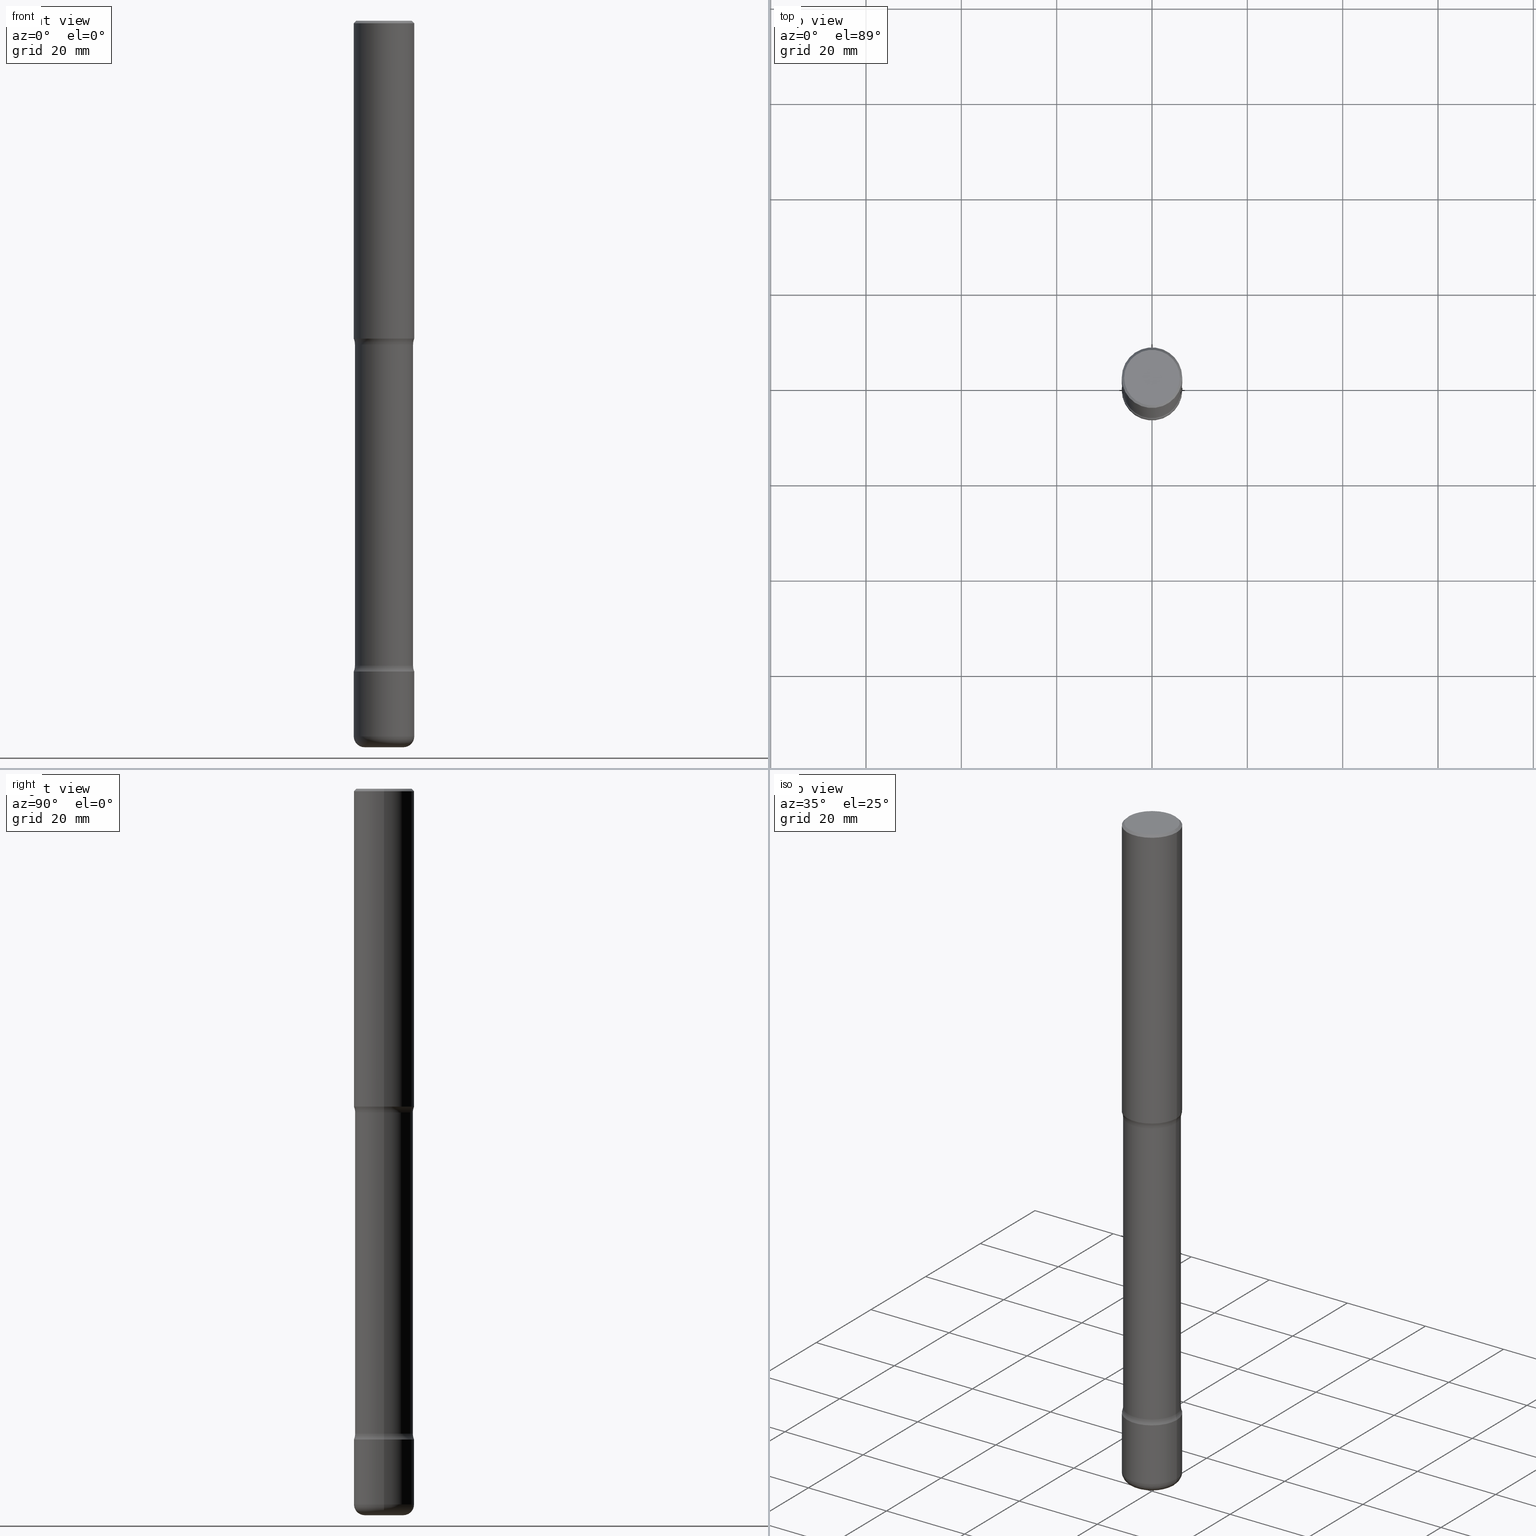
[diagram: canonical four-view strip — front | top / right | iso, engineering-drawing reading convention]
A machine part, canonical four-view strip (front | top / right | iso — engineering-drawing reading convention). The complete STEP part file that produces these views, byte-faithful:
ISO-10303-21;
HEADER;
FILE_DESCRIPTION (( 'STEP AP203' ),
    '1' );
FILE_NAME ('32841.STEP',
    '2023-03-11T07:06:01',
    ( '' ),
    ( '' ),
    'SwSTEP 2.0',
    'SolidWorks 2022',
    '' );
FILE_SCHEMA (( 'CONFIG_CONTROL_DESIGN' ));
ENDSEC;

DATA;
#1 = EDGE_LOOP ( 'NONE', ( #552, #108, #412, #759 ) ) ;
#2 = SECURITY_CLASSIFICATION_LEVEL ( 'unclassified' ) ;
#3 = ADVANCED_FACE ( 'NONE', ( #640 ), #381, .T. ) ;
#4 = DIRECTION ( 'NONE',  ( 2.445468806185136597E-29, -3.491481338843145583E-15, -1.000000000000000000 ) ) ;
#5 = EDGE_LOOP ( 'NONE', ( #8, #47, #513, #113 ) ) ;
#6 = EDGE_LOOP ( 'NONE', ( #35, #314, #207, #221 ) ) ;
#7 = FACE_OUTER_BOUND ( 'NONE', #240, .T. ) ;
#8 = ORIENTED_EDGE ( 'NONE', *, *, #669, .F. ) ;
#9 = CARTESIAN_POINT ( 'NONE',  ( 0.2499999999999999167, -2.051245286570347630E-14, -5.375000000000000888 ) ) ;
#10 = ORIENTED_EDGE ( 'NONE', *, *, #171, .F. ) ;
#11 = ORIENTED_EDGE ( 'NONE', *, *, #428, .T. ) ;
#12 = AXIS2_PLACEMENT_3D ( 'NONE', #323, #549, #485 ) ;
#13 = AXIS2_PLACEMENT_3D ( 'NONE', #514, #208, #700 ) ;
#14 = CYLINDRICAL_SURFACE ( 'NONE', #95, 0.2399999999999999634 ) ;
#15 = ORIENTED_EDGE ( 'NONE', *, *, #428, .F. ) ;
#16 = FACE_OUTER_BOUND ( 'NONE', #170, .T. ) ;
#17 = DIRECTION ( 'NONE',  ( -2.445468806185136597E-29, 3.491481338843145583E-15, 1.000000000000000000 ) ) ;
#18 = CARTESIAN_POINT ( 'NONE',  ( 0.2499999999999997224, -1.784954126219744217E-15, -0.02000000000000005593 ) ) ;
#19 = ORIENTED_EDGE ( 'NONE', *, *, #579, .F. ) ;
#20 = PERSON ( 'UNSPECIFIED', 'UNSPECIFIED', 'UNSPECIFIED', ('UNSPECIFIED'), ('UNSPECIFIED'), ('UNSPECIFIED') ) ;
#21 = CARTESIAN_POINT ( 'NONE',  ( -0.2499999999999999722, -2.841127231219808307E-15, -2.625000000000000444 ) ) ;
#22 = CYLINDRICAL_SURFACE ( 'NONE', #204, 0.2399999999999999634 ) ;
#23 = CARTESIAN_POINT ( 'NONE',  ( 6.419355616235984688E-29, -9.165138514463258190E-15, -2.625000000000000444 ) ) ;
#24 = AXIS2_PLACEMENT_3D ( 'NONE', #59, #445, #686 ) ;
#25 = FACE_OUTER_BOUND ( 'NONE', #288, .T. ) ;
#26 = LOCAL_TIME ( 2, 6, 1.000000000000000000, #628 ) ;
#27 = FACE_OUTER_BOUND ( 'NONE', #413, .T. ) ;
#28 = ADVANCED_FACE ( 'NONE', ( #187, #561 ), #262, .F. ) ;
#29 = DIRECTION ( 'NONE',  ( -2.445468806185136597E-29, 3.491481338843145583E-15, 1.000000000000000000 ) ) ;
#30 = DIRECTION ( 'NONE',  ( -2.445468806185136597E-29, 3.491481338843145583E-15, 1.000000000000000000 ) ) ;
#31 = APPLICATION_CONTEXT ( 'configuration controlled 3d designs of mechanical parts and assemblies' ) ;
#32 = CARTESIAN_POINT ( 'NONE',  ( 0.2399999999999996858, -1.101209651164026728E-14, -2.673989794855665014 ) ) ;
#33 = DIRECTION ( 'NONE',  ( 1.000000000000000000, -6.982962677686266711E-15, 4.876225828469315047E-29 ) ) ;
#34 = CARTESIAN_POINT ( 'NONE',  ( 1.314439483324511145E-28, -1.876671219628190963E-14, -5.375000000000000888 ) ) ;
#35 = ORIENTED_EDGE ( 'NONE', *, *, #713, .F. ) ;
#36 = AXIS2_PLACEMENT_3D ( 'NONE', #780, #603, #310 ) ;
#37 = AXIS2_PLACEMENT_3D ( 'NONE', #145, #335, #760 ) ;
#38 = EDGE_CURVE ( 'NONE', #721, #125, #675, .T. ) ;
#39 = CARTESIAN_POINT ( 'NONE',  ( 1.466128415402601217E-28, -2.093242812903137856E-14, -5.995285696118614283 ) ) ;
#40 = DIRECTION ( 'NONE',  ( 1.000000000000000000, -6.982962677686269077E-15, 4.883557194083113462E-29 ) ) ;
#41 = ORIENTED_EDGE ( 'NONE', *, *, #385, .F. ) ;
#42 = CYLINDRICAL_SURFACE ( 'NONE', #382, 0.2399999999999999634 ) ;
#43 = APPLICATION_PROTOCOL_DEFINITION ( 'international standard', 'config_control_design', 1994, #31 ) ;
#44 = VERTEX_POINT ( 'NONE', #9 ) ;
#45 = DIRECTION ( 'NONE',  ( 1.000000000000000000, -6.982962677686266711E-15, 0.000000000000000000 ) ) ;
#46 = ORIENTED_EDGE ( 'NONE', *, *, #351, .F. ) ;
#47 = ORIENTED_EDGE ( 'NONE', *, *, #185, .F. ) ;
#48 = APPROVAL ( #114, 'UNSPECIFIED' ) ;
#49 = CLOSED_SHELL ( 'NONE', ( #338, #805, #368, #28, #3, #380, #544, #784 ) ) ;
#50 = PLANE ( 'NONE',  #555 ) ;
#51 = ORIENTED_EDGE ( 'NONE', *, *, #706, .T. ) ;
#52 = AXIS2_PLACEMENT_3D ( 'NONE', #107, #365, #45 ) ;
#53 = ADVANCED_FACE ( 'NONE', ( #451 ), #378, .T. ) ;
#54 = AXIS2_PLACEMENT_3D ( 'NONE', #133, #630, #71 ) ;
#55 = ORIENTED_EDGE ( 'NONE', *, *, #494, .F. ) ;
#56 = ORIENTED_EDGE ( 'NONE', *, *, #171, .T. ) ;
#57 = DIRECTION ( 'NONE',  ( 1.000000000000000000, -6.982962677686260400E-15, 0.000000000000000000 ) ) ;
#58 = PERSON_AND_ORGANIZATION_ROLE ( 'design_supplier' ) ;
#59 = CARTESIAN_POINT ( 'NONE',  ( 1.314439483324511145E-28, -1.876671219628190963E-14, -5.375000000000000888 ) ) ;
#60 = VERTEX_POINT ( 'NONE', #694 ) ;
#61 = EDGE_LOOP ( 'NONE', ( #194, #578 ) ) ;
#62 = EDGE_CURVE ( 'NONE', #158, #448, #626, .T. ) ;
#63 = EDGE_LOOP ( 'NONE', ( #548, #342, #152, #575 ) ) ;
#64 = ADVANCED_FACE ( 'NONE', ( #621 ), #42, .T. ) ;
#65 = CARTESIAN_POINT ( 'NONE',  ( -0.2399999999999996858, -7.660274426350862101E-15, -2.673989794855665014 ) ) ;
#66 = VERTEX_POINT ( 'NONE', #321 ) ;
#67 = VECTOR ( 'NONE', #574, 39.37007874015748143 ) ;
#68 = DIRECTION ( 'NONE',  ( 1.000000000000000000, -6.982962677686269077E-15, 0.000000000000000000 ) ) ;
#69 = ORIENTED_EDGE ( 'NONE', *, *, #142, .F. ) ;
#70 = APPROVAL_PERSON_ORGANIZATION ( #749, #48, #132 ) ;
#71 = DIRECTION ( 'NONE',  ( 1.000000000000000000, -6.982962677686269077E-15, 4.883557194083113462E-29 ) ) ;
#72 = ORIENTED_EDGE ( 'NONE', *, *, #729, .F. ) ;
#73 = ORIENTED_EDGE ( 'NONE', *, *, #806, .F. ) ;
#74 = DIRECTION ( 'NONE',  ( -1.000000000000000000, 6.982962677686265922E-15, -4.876176775795935793E-29 ) ) ;
#75 = ORIENTED_EDGE ( 'NONE', *, *, #110, .T. ) ;
#76 = CARTESIAN_POINT ( 'NONE',  ( 1.467281283711081510E-28, -2.094888803305886640E-14, -5.999999999999998224 ) ) ;
#77 = ORIENTED_EDGE ( 'NONE', *, *, #190, .T. ) ;
#78 = CARTESIAN_POINT ( 'NONE',  ( -0.2500000000000000000, 1.776356839400250465E-15, -1.229733772563726445E-29 ) ) ;
#79 = EDGE_CURVE ( 'NONE', #387, #125, #782, .T. ) ;
#80 = APPROVAL ( #531, 'UNSPECIFIED' ) ;
#81 = DIRECTION ( 'NONE',  ( -2.445468806185136597E-29, 3.491481338843145583E-15, 1.000000000000000000 ) ) ;
#82 = CARTESIAN_POINT ( 'NONE',  ( 1.445272064455415567E-28, -2.063465471256298944E-14, -5.910000000000000142 ) ) ;
#83 = AXIS2_PLACEMENT_3D ( 'NONE', #547, #360, #234 ) ;
#84 =( GEOMETRIC_REPRESENTATION_CONTEXT ( 3 ) GLOBAL_UNCERTAINTY_ASSIGNED_CONTEXT ( ( #236 ) ) GLOBAL_UNIT_ASSIGNED_CONTEXT ( ( #286, #791, #605 ) ) REPRESENTATION_CONTEXT ( 'NONE', 'WORKASPACE' ) );
#85 = FACE_OUTER_BOUND ( 'NONE', #346, .T. ) ;
#86 = CARTESIAN_POINT ( 'NONE',  ( -0.2399999999999996858, -7.509832289117167989E-15, -2.673989794855665014 ) ) ;
#87 = CARTESIAN_POINT ( 'NONE',  ( 1.302459181810417859E-28, -1.859566524174961022E-14, -5.326010205144338094 ) ) ;
#88 = ORIENTED_EDGE ( 'NONE', *, *, #729, .T. ) ;
#89 = DIRECTION ( 'NONE',  ( 1.000000000000000000, -6.982962677686260400E-15, 0.000000000000000000 ) ) ;
#90 = DIRECTION ( 'NONE',  ( 1.000000000000000000, -6.982962677686269866E-15, 4.883557194083114583E-29 ) ) ;
#91 = DIRECTION ( 'NONE',  ( 1.000000000000000000, -6.982962677686265133E-15, 0.000000000000000000 ) ) ;
#92 = AXIS2_PLACEMENT_3D ( 'NONE', #708, #343, #96 ) ;
#93 = CIRCLE ( 'NONE', #768, 0.1250000000000000278 ) ;
#94 = DIRECTION ( 'NONE',  ( 1.000000000000000000, -6.982962677686269077E-15, 0.000000000000000000 ) ) ;
#95 = AXIS2_PLACEMENT_3D ( 'NONE', #282, #272, #94 ) ;
#96 = DIRECTION ( 'NONE',  ( 1.000000000000000000, -6.982962677686265922E-15, 4.876176775795935793E-29 ) ) ;
#97 = CARTESIAN_POINT ( 'NONE',  ( 0.000000000000000000, 0.000000000000000000, 0.000000000000000000 ) ) ;
#98 = DIRECTION ( 'NONE',  ( -1.000000000000000000, 6.982962677686262766E-15, 0.000000000000000000 ) ) ;
#99 = APPROVAL_DATE_TIME ( #720, #80 ) ;
#100 = DIRECTION ( 'NONE',  ( -6.982962677686266711E-15, -1.000000000000000000, 3.491481338843145583E-15 ) ) ;
#101 = EDGE_CURVE ( 'NONE', #776, #641, #232, .T. ) ;
#102 = CC_DESIGN_PERSON_AND_ORGANIZATION_ASSIGNMENT ( #295, #535, ( #654 ) ) ;
#103 = CIRCLE ( 'NONE', #397, 0.1250000000000000278 ) ;
#104 = CALENDAR_DATE ( 2023, 11, 3 ) ;
#105 = TOROIDAL_SURFACE ( 'NONE', #584, 0.3649999999999997136, 0.1250000000000000278 ) ;
#106 = DIRECTION ( 'NONE',  ( 1.000000000000000000, -6.982962677686269866E-15, 4.883557194083114583E-29 ) ) ;
#107 = CARTESIAN_POINT ( 'NONE',  ( 4.890937612370287172E-31, -6.982962677686310098E-17, -0.02000000000000005593 ) ) ;
#108 = ORIENTED_EDGE ( 'NONE', *, *, #553, .T. ) ;
#109 = DATE_AND_TIME ( #260, #26 ) ;
#110 = EDGE_CURVE ( 'NONE', #448, #228, #444, .T. ) ;
#111 = CARTESIAN_POINT ( 'NONE',  ( 0.2500000000000000000, -1.091087918388482487E-14, -2.625000000000000444 ) ) ;
#112 = ORIENTED_EDGE ( 'NONE', *, *, #724, .F. ) ;
#113 = ORIENTED_EDGE ( 'NONE', *, *, #498, .T. ) ;
#114 = APPROVAL_STATUS ( 'not_yet_approved' ) ;
#115 = CARTESIAN_POINT ( 'NONE',  ( -0.2499999999999997224, 1.675911042644701605E-15, -0.02000000000000005593 ) ) ;
#116 = CIRCLE ( 'NONE', #241, 0.2500000000000000000 ) ;
#117 = AXIS2_PLACEMENT_3D ( 'NONE', #590, #417, #663 ) ;
#118 = CIRCLE ( 'NONE', #599, 0.2500000000000000000 ) ;
#119 = COORDINATED_UNIVERSAL_TIME_OFFSET ( 5, 0, .BEHIND. ) ;
#120 = DIRECTION ( 'NONE',  ( 2.438088387897960049E-29, -3.491481338843145188E-15, -1.000000000000000000 ) ) ;
#121 = ADVANCED_FACE ( 'NONE', ( #519 ), #774, .F. ) ;
#122 = DIRECTION ( 'NONE',  ( -2.438088387897960049E-29, 3.491481338843145188E-15, 1.000000000000000000 ) ) ;
#123 = EDGE_CURVE ( 'NONE', #606, #673, #116, .T. ) ;
#124 = EDGE_CURVE ( 'NONE', #387, #721, #127, .T. ) ;
#125 = VERTEX_POINT ( 'NONE', #585 ) ;
#126 = DIRECTION ( 'NONE',  ( 1.000000000000000000, -6.982962677686266711E-15, 0.000000000000000000 ) ) ;
#127 = LINE ( 'NONE', #624, #279 ) ;
#128 = ADVANCED_FACE ( 'NONE', ( #530 ), #596, .T. ) ;
#129 = DIRECTION ( 'NONE',  ( -2.445468806185136597E-29, 3.491481338843145583E-15, 1.000000000000000000 ) ) ;
#130 = DIRECTION ( 'NONE',  ( 1.000000000000000000, -6.982962677686273021E-15, 4.883557194083114583E-29 ) ) ;
#131 = ORIENTED_EDGE ( 'NONE', *, *, #716, .F. ) ;
#132 = APPROVAL_ROLE ( '' ) ;
#133 = CARTESIAN_POINT ( 'NONE',  ( 6.539158631376920910E-29, -9.336185468995565480E-15, -2.673989794855665014 ) ) ;
#134 = AXIS2_PLACEMENT_3D ( 'NONE', #179, #175, #423 ) ;
#135 = EDGE_LOOP ( 'NONE', ( #505, #322, #19 ) ) ;
#136 = CIRCLE ( 'NONE', #150, 0.09000000000000020484 ) ;
#137 = CYLINDRICAL_SURFACE ( 'NONE', #216, 0.2399999999999999634 ) ;
#138 = EDGE_LOOP ( 'NONE', ( #795, #297, #75, #10 ) ) ;
#139 = CARTESIAN_POINT ( 'NONE',  ( 1.467281283711081958E-28, -2.094888803305887271E-14, -6.000000000000000888 ) ) ;
#140 = ORIENTED_EDGE ( 'NONE', *, *, #38, .T. ) ;
#141 = DIRECTION ( 'NONE',  ( -1.000000000000000000, 6.982962677686269077E-15, 0.000000000000000000 ) ) ;
#142 = EDGE_CURVE ( 'NONE', #228, #247, #285, .T. ) ;
#143 = LINE ( 'NONE', #392, #347 ) ;
#144 = ORIENTED_EDGE ( 'NONE', *, *, #385, .T. ) ;
#145 = CARTESIAN_POINT ( 'NONE',  ( 6.419355616235984688E-29, -9.165138514463258190E-15, -2.625000000000000444 ) ) ;
#146 = CARTESIAN_POINT ( 'NONE',  ( 0.2500000000000001110, -2.238039538198455612E-14, -5.910000000000000142 ) ) ;
#147 = AXIS2_PLACEMENT_3D ( 'NONE', #523, #223, #160 ) ;
#148 = CIRCLE ( 'NONE', #524, 0.2299999999999997047 ) ;
#149 = CIRCLE ( 'NONE', #677, 0.1350000000000000366 ) ;
#150 = AXIS2_PLACEMENT_3D ( 'NONE', #650, #520, #390 ) ;
#151 = CARTESIAN_POINT ( 'NONE',  ( -0.1600000000000000311, -1.933515876450272677E-14, -6.000000000000000888 ) ) ;
#152 = ORIENTED_EDGE ( 'NONE', *, *, #263, .T. ) ;
#153 = ADVANCED_FACE ( 'NONE', ( #27 ), #162, .F. ) ;
#154 = LINE ( 'NONE', #18, #614 ) ;
#155 = CARTESIAN_POINT ( 'NONE',  ( -1.043851414335219820E-46, 1.490343170380447200E-32, 4.268512490100411279E-18 ) ) ;
#156 = EDGE_CURVE ( 'NONE', #324, #60, #480, .T. ) ;
#157 = CC_DESIGN_PERSON_AND_ORGANIZATION_ASSIGNMENT ( #734, #58, ( #372 ) ) ;
#158 = VERTEX_POINT ( 'NONE', #151 ) ;
#159 = CARTESIAN_POINT ( 'NONE',  ( -0.3650000000000002687, -1.600218425622524303E-14, -5.326010205144338094 ) ) ;
#160 = DIRECTION ( 'NONE',  ( 1.000000000000000000, -6.982962677686262766E-15, 0.000000000000000000 ) ) ;
#161 = AXIS2_PLACEMENT_3D ( 'NONE', #331, #506, #571 ) ;
#162 = TOROIDAL_SURFACE ( 'NONE', #545, 0.3650000000000002687, 0.1250000000000000000 ) ;
#163 = TOROIDAL_SURFACE ( 'NONE', #613, 0.3649999999999997136, 0.1250000000000000278 ) ;
#164 = LOCAL_TIME ( 2, 6, 1.000000000000000000, #304 ) ;
#165 = DIRECTION ( 'NONE',  ( 2.445468806185136597E-29, -3.491481338843145583E-15, -1.000000000000000000 ) ) ;
#166 = EDGE_LOOP ( 'NONE', ( #180, #140 ) ) ;
#167 = ORIENTED_EDGE ( 'NONE', *, *, #553, .F. ) ;
#168 = DIRECTION ( 'NONE',  ( -2.445468806185136597E-29, 3.491481338843145583E-15, 1.000000000000000000 ) ) ;
#169 = PLANE ( 'NONE',  #117 ) ;
#170 = EDGE_LOOP ( 'NONE', ( #88, #51, #112, #328 ) ) ;
#171 = EDGE_CURVE ( 'NONE', #66, #228, #308, .T. ) ;
#172 = CLOSED_SHELL ( 'NONE', ( #64, #620, #429, #607, #53, #738, #763, #736 ) ) ;
#173 = CARTESIAN_POINT ( 'NONE',  ( -0.2499999999999999167, -1.702097152686034295E-14, -5.375000000000000888 ) ) ;
#174 = AXIS2_PLACEMENT_3D ( 'NONE', #478, #100, #291 ) ;
#175 = DIRECTION ( 'NONE',  ( -2.445468806185136597E-29, 3.491481338843145583E-15, 1.000000000000000000 ) ) ;
#176 = LOCAL_TIME ( 2, 6, 1.000000000000000000, #119 ) ;
#177 = VERTEX_POINT ( 'NONE', #21 ) ;
#178 = FACE_OUTER_BOUND ( 'NONE', #595, .T. ) ;
#179 = CARTESIAN_POINT ( 'NONE',  ( 0.000000000000000000, 0.000000000000000000, 0.000000000000000000 ) ) ;
#180 = ORIENTED_EDGE ( 'NONE', *, *, #579, .T. ) ;
#181 = CARTESIAN_POINT ( 'NONE',  ( 6.539158631376920910E-29, -9.336185468995565480E-15, -2.673989794855665014 ) ) ;
#182 = CLOSED_SHELL ( 'NONE', ( #235, #128, #526, #463, #121, #474 ) ) ;
#183 = DIRECTION ( 'NONE',  ( -1.000000000000000000, 6.982962677686266711E-15, -4.883557194083112901E-29 ) ) ;
#184 = AXIS2_PLACEMENT_3D ( 'NONE', #341, #527, #456 ) ;
#185 = EDGE_CURVE ( 'NONE', #536, #748, #754, .T. ) ;
#186 = CIRCLE ( 'NONE', #398, 0.2400000000000002687 ) ;
#187 = FACE_OUTER_BOUND ( 'NONE', #214, .T. ) ;
#188 = CIRCLE ( 'NONE', #281, 0.1249999999999999584 ) ;
#189 = APPROVAL_STATUS ( 'not_yet_approved' ) ;
#190 = EDGE_CURVE ( 'NONE', #797, #200, #767, .T. ) ;
#191 = DIRECTION ( 'NONE',  ( 2.438088387897960049E-29, -3.491481338843145188E-15, -1.000000000000000000 ) ) ;
#192 = PERSON_AND_ORGANIZATION ( #20, #470 ) ;
#193 = DIRECTION ( 'NONE',  ( -1.000000000000000000, 6.982962677686269077E-15, 0.000000000000000000 ) ) ;
#194 = ORIENTED_EDGE ( 'NONE', *, *, #651, .T. ) ;
#195 = MANIFOLD_SOLID_BREP ( 'Body-Move/Copy2[2]', #182 ) ;
#196 = CARTESIAN_POINT ( 'NONE',  ( 0.2399999999999999634, -2.257894764849654652E-14, -5.995285696118614283 ) ) ;
#197 = ORIENTED_EDGE ( 'NONE', *, *, #405, .T. ) ;
#198 = EDGE_CURVE ( 'NONE', #573, #776, #566, .T. ) ;
#199 = PERSON_AND_ORGANIZATION_ROLE ( 'classification_officer' ) ;
#200 = VERTEX_POINT ( 'NONE', #86 ) ;
#201 = PRODUCT_RELATED_PRODUCT_CATEGORY ( 'detail', '', ( #307 ) ) ;
#202 = TOROIDAL_SURFACE ( 'NONE', #36, 0.1600000000000000033, 0.09000000000000020484 ) ;
#203 = EDGE_LOOP ( 'NONE', ( #636, #592, #55, #215 ) ) ;
#204 = AXIS2_PLACEMENT_3D ( 'NONE', #696, #765, #141 ) ;
#205 = LINE ( 'NONE', #563, #447 ) ;
#206 = EDGE_LOOP ( 'NONE', ( #197, #698 ) ) ;
#207 = ORIENTED_EDGE ( 'NONE', *, *, #591, .T. ) ;
#208 = DIRECTION ( 'NONE',  ( -2.445468806185136597E-29, 3.491481338843145583E-15, 1.000000000000000000 ) ) ;
#209 = VERTEX_POINT ( 'NONE', #645 ) ;
#210 = DIRECTION ( 'NONE',  ( 7.105427357601001859E-15, 1.000000000000000000, -3.491481338843145583E-15 ) ) ;
#211 = CARTESIAN_POINT ( 'NONE',  ( -0.2400000000000002687, -1.694035901640351371E-14, -5.326010205144338094 ) ) ;
#212 = ORIENTED_EDGE ( 'NONE', *, *, #101, .T. ) ;
#213 = CYLINDRICAL_SURFACE ( 'NONE', #431, 0.2499999999999998612 ) ;
#214 = EDGE_LOOP ( 'NONE', ( #72, #660 ) ) ;
#215 = ORIENTED_EDGE ( 'NONE', *, *, #263, .F. ) ;
#216 = AXIS2_PLACEMENT_3D ( 'NONE', #679, #800, #376 ) ;
#217 = AXIS2_PLACEMENT_3D ( 'NONE', #87, #276, #106 ) ;
#218 = DIRECTION ( 'NONE',  ( 1.000000000000000000, -6.982962677686262766E-15, 0.000000000000000000 ) ) ;
#219 = LINE ( 'NONE', #465, #67 ) ;
#220 = ORIENTED_EDGE ( 'NONE', *, *, #560, .T. ) ;
#221 = ORIENTED_EDGE ( 'NONE', *, *, #542, .T. ) ;
#222 = CARTESIAN_POINT ( 'NONE',  ( 0.1349999999999999534, -2.187505526275802593E-14, -5.999999999999998224 ) ) ;
#223 = DIRECTION ( 'NONE',  ( -2.445468806185136597E-29, 3.491481338843145583E-15, 1.000000000000000000 ) ) ;
#224 = DIRECTION ( 'NONE',  ( 1.000000000000000000, 0.000000000000000000, 0.000000000000000000 ) ) ;
#225 = DIRECTION ( 'NONE',  ( -2.438088387897960049E-29, 3.491481338843145188E-15, 1.000000000000000000 ) ) ;
#226 = DIRECTION ( 'NONE',  ( -2.445468806185136877E-29, 3.491481338843145188E-15, 1.000000000000000000 ) ) ;
#227 = DIRECTION ( 'NONE',  ( 1.000000000000000000, -6.982962677686252511E-15, 0.000000000000000000 ) ) ;
#228 = VERTEX_POINT ( 'NONE', #146 ) ;
#229 = AXIS2_PLACEMENT_3D ( 'NONE', #735, #430, #193 ) ;
#230 = APPROVAL_PERSON_ORGANIZATION ( #443, #764, #685 ) ;
#231 = FACE_OUTER_BOUND ( 'NONE', #479, .T. ) ;
#232 = LINE ( 'NONE', #196, #533 ) ;
#233 = COORDINATED_UNIVERSAL_TIME_OFFSET ( 5, 0, .BEHIND. ) ;
#234 = DIRECTION ( 'NONE',  ( 1.000000000000000000, -6.982962677686262766E-15, 0.000000000000000000 ) ) ;
#235 = ADVANCED_FACE ( 'NONE', ( #701 ), #213, .T. ) ;
#236 = UNCERTAINTY_MEASURE_WITH_UNIT (LENGTH_MEASURE( 1.000000000000000082E-05 ), #286, 'distance_accuracy_value', 'NONE');
#237 = FACE_OUTER_BOUND ( 'NONE', #1, .T. ) ;
#238 = CC_DESIGN_PERSON_AND_ORGANIZATION_ASSIGNMENT ( #192, #199, ( #333 ) ) ;
#239 = DIRECTION ( 'NONE',  ( -2.445468806185136597E-29, 3.491481338843145583E-15, 1.000000000000000000 ) ) ;
#240 = EDGE_LOOP ( 'NONE', ( #562, #46 ) ) ;
#241 = AXIS2_PLACEMENT_3D ( 'NONE', #529, #466, #437 ) ;
#242 = FACE_OUTER_BOUND ( 'NONE', #268, .T. ) ;
#243 = EDGE_LOOP ( 'NONE', ( #496, #259, #435, #77 ) ) ;
#244 = AXIS2_PLACEMENT_3D ( 'NONE', #383, #743, #126 ) ;
#245 = DIRECTION ( 'NONE',  ( 2.445468806185136597E-29, -3.491481338843145583E-15, -1.000000000000000000 ) ) ;
#246 = AXIS2_PLACEMENT_3D ( 'NONE', #467, #671, #364 ) ;
#247 = VERTEX_POINT ( 'NONE', #652 ) ;
#248 = ORIENTED_EDGE ( 'NONE', *, *, #375, .T. ) ;
#249 = CARTESIAN_POINT ( 'NONE',  ( 1.314439483324511145E-28, -1.876671219628190963E-14, -5.375000000000000888 ) ) ;
#250 = EDGE_LOOP ( 'NONE', ( #312, #298, #695, #761 ) ) ;
#251 = FACE_OUTER_BOUND ( 'NONE', #243, .T. ) ;
#252 = ORIENTED_EDGE ( 'NONE', *, *, #124, .F. ) ;
#253 = CIRCLE ( 'NONE', #801, 0.2500000000000000000 ) ;
#254 = CARTESIAN_POINT ( 'NONE',  ( 6.419355616235984688E-29, -9.165138514463258190E-15, -2.625000000000000444 ) ) ;
#255 = CIRCLE ( 'NONE', #420, 0.2500000000000000000 ) ;
#256 = CIRCLE ( 'NONE', #246, 0.1250000000000000000 ) ;
#257 = VECTOR ( 'NONE', #329, 39.37007874015748143 ) ;
#258 = CALENDAR_DATE ( 2023, 11, 3 ) ;
#259 = ORIENTED_EDGE ( 'NONE', *, *, #651, .F. ) ;
#260 = CALENDAR_DATE ( 2023, 11, 3 ) ;
#261 = FACE_OUTER_BOUND ( 'NONE', #787, .T. ) ;
#262 = PLANE ( 'NONE',  #161 ) ;
#263 = EDGE_CURVE ( 'NONE', #625, #704, #462, .T. ) ;
#264 = EDGE_CURVE ( 'NONE', #646, #200, #779, .T. ) ;
#265 = CARTESIAN_POINT ( 'NONE',  ( 1.314439483324511145E-28, -1.876671219628190963E-14, -5.375000000000000888 ) ) ;
#266 = VECTOR ( 'NONE', #226, 39.37007874015748143 ) ;
#267 = CONICAL_SURFACE ( 'NONE', #446, 1127.411546571864619, 1.535889741755021909 ) ;
#268 = EDGE_LOOP ( 'NONE', ( #252, #670, #452 ) ) ;
#269 = CC_DESIGN_APPROVAL ( #80, ( #654 ) ) ;
#270 = DIRECTION ( 'NONE',  ( -2.445468806185136597E-29, 3.491481338843145583E-15, 1.000000000000000000 ) ) ;
#271 = CARTESIAN_POINT ( 'NONE',  ( 6.539158631376920910E-29, -9.336185468995565480E-15, -2.673989794855665014 ) ) ;
#272 = DIRECTION ( 'NONE',  ( -2.445468806185136597E-29, 3.491481338843145583E-15, 1.000000000000000000 ) ) ;
#273 = ORIENTED_EDGE ( 'NONE', *, *, #669, .T. ) ;
#274 = CARTESIAN_POINT ( 'NONE',  ( 0.000000000000000000, 0.000000000000000000, 0.000000000000000000 ) ) ;
#275 = EDGE_CURVE ( 'NONE', #573, #606, #103, .T. ) ;
#276 = DIRECTION ( 'NONE',  ( -2.445468806185136597E-29, 3.491481338843145583E-15, 1.000000000000000000 ) ) ;
#277 = ORIENTED_EDGE ( 'NONE', *, *, #690, .F. ) ;
#278 = DIRECTION ( 'NONE',  ( 1.000000000000000000, -6.982962677686262766E-15, 0.000000000000000000 ) ) ;
#279 = VECTOR ( 'NONE', #319, 39.37007874015748854 ) ;
#280 = AXIS2_PLACEMENT_3D ( 'NONE', #492, #4, #504 ) ;
#281 = AXIS2_PLACEMENT_3D ( 'NONE', #159, #453, #572 ) ;
#282 = CARTESIAN_POINT ( 'NONE',  ( 6.419355616235984688E-29, -9.165138514463258190E-15, -2.625000000000000444 ) ) ;
#283 = DIRECTION ( 'NONE',  ( -2.445468806185136597E-29, 3.491481338843145583E-15, 1.000000000000000000 ) ) ;
#284 = EDGE_CURVE ( 'NONE', #177, #625, #253, .T. ) ;
#285 = LINE ( 'NONE', #339, #266 ) ;
#286 =( CONVERSION_BASED_UNIT ( 'INCH', #482 ) LENGTH_UNIT ( ) NAMED_UNIT ( #500 ) );
#287 = CARTESIAN_POINT ( 'NONE',  ( -0.3649999999999997136, -6.787404091640079551E-15, -2.673989794855665014 ) ) ;
#288 = EDGE_LOOP ( 'NONE', ( #389, #377, #709, #277 ) ) ;
#289 = ORIENTED_EDGE ( 'NONE', *, *, #334, .F. ) ;
#290 = PERSON_AND_ORGANIZATION ( #20, #470 ) ;
#291 = DIRECTION ( 'NONE',  ( 1.000000000000000000, -6.982962677686261189E-15, 0.000000000000000000 ) ) ;
#292 = AXIS2_PLACEMENT_3D ( 'NONE', #434, #122, #752 ) ;
#293 = AXIS2_PLACEMENT_3D ( 'NONE', #726, #777, #722 ) ;
#294 = AXIS2_PLACEMENT_3D ( 'NONE', #792, #733, #656 ) ;
#295 = PERSON_AND_ORGANIZATION ( #20, #470 ) ;
#296 = DIRECTION ( 'NONE',  ( -1.000000000000000000, 6.860497997771529985E-15, 0.000000000000000000 ) ) ;
#297 = ORIENTED_EDGE ( 'NONE', *, *, #62, .T. ) ;
#298 = ORIENTED_EDGE ( 'NONE', *, *, #661, .T. ) ;
#299 = CARTESIAN_POINT ( 'NONE',  ( 0.1600000000000000033, -2.175192874099279275E-14, -5.910000000000000142 ) ) ;
#300 = DATE_TIME_ROLE ( 'creation_date' ) ;
#301 = EDGE_CURVE ( 'NONE', #247, #483, #316, .T. ) ;
#302 = DIRECTION ( 'NONE',  ( -1.000000000000000000, 6.982962677686268288E-15, 0.000000000000000000 ) ) ;
#303 = EDGE_CURVE ( 'NONE', #573, #753, #219, .T. ) ;
#304 = COORDINATED_UNIVERSAL_TIME_OFFSET ( 5, 0, .BEHIND. ) ;
#305 = FACE_OUTER_BOUND ( 'NONE', #403, .T. ) ;
#306 = ORIENTED_EDGE ( 'NONE', *, *, #591, .F. ) ;
#307 = PRODUCT ( '32841', '32841', '', ( #658 ) ) ;
#308 = CIRCLE ( 'NONE', #147, 0.2500000000000000000 ) ;
#309 = AXIS2_PLACEMENT_3D ( 'NONE', #728, #165, #98 ) ;
#310 = DIRECTION ( 'NONE',  ( 1.000000000000000000, -6.982962677686273021E-15, 4.883557194083114583E-29 ) ) ;
#311 = AXIS2_PLACEMENT_3D ( 'NONE', #475, #29, #789 ) ;
#312 = ORIENTED_EDGE ( 'NONE', *, *, #185, .T. ) ;
#313 = DIRECTION ( 'NONE',  ( 2.445468806185136597E-29, -3.491481338843145583E-15, -1.000000000000000000 ) ) ;
#314 = ORIENTED_EDGE ( 'NONE', *, *, #405, .F. ) ;
#315 = ORIENTED_EDGE ( 'NONE', *, *, #284, .F. ) ;
#316 = CIRCLE ( 'NONE', #419, 0.2500000000000000000 ) ;
#317 = DIRECTION ( 'NONE',  ( -0.7071067811865469066, 2.468850131082250355E-15, -0.7071067811865481278 ) ) ;
#318 = AXIS2_PLACEMENT_3D ( 'NONE', #436, #486, #623 ) ;
#319 = DIRECTION ( 'NONE',  ( 0.9993908270190960952, -6.978169709227503623E-15, -0.03489949670248909674 ) ) ;
#320 = LOCAL_TIME ( 2, 6, 1.000000000000000000, #233 ) ;
#321 = CARTESIAN_POINT ( 'NONE',  ( -0.2500000000000001110, -1.885829787316274213E-14, -5.910000000000000142 ) ) ;
#322 = ORIENTED_EDGE ( 'NONE', *, *, #124, .T. ) ;
#323 = CARTESIAN_POINT ( 'NONE',  ( 1.302459181810417859E-28, -1.859566524174961022E-14, -5.326010205144338094 ) ) ;
#324 = VERTEX_POINT ( 'NONE', #715 ) ;
#325 = ORIENTED_EDGE ( 'NONE', *, *, #415, .F. ) ;
#326 = DIRECTION ( 'NONE',  ( 1.000000000000000000, -6.982962677686262766E-15, 0.000000000000000000 ) ) ;
#327 = DIRECTION ( 'NONE',  ( 1.000000000000000000, -6.982962677686251722E-15, 0.000000000000000000 ) ) ;
#328 = ORIENTED_EDGE ( 'NONE', *, *, #110, .F. ) ;
#329 = DIRECTION ( 'NONE',  ( -2.445468806185136877E-29, 3.491481338843145188E-15, 1.000000000000000000 ) ) ;
#330 = DIRECTION ( 'NONE',  ( 1.000000000000000000, -6.982962677686269077E-15, 0.000000000000000000 ) ) ;
#331 = CARTESIAN_POINT ( 'NONE',  ( -1.684605559392376198E-27, -2.832062954248277283E-13, -5.999999999999999112 ) ) ;
#332 = VECTOR ( 'NONE', #317, 39.37007874015748143 ) ;
#333 = SECURITY_CLASSIFICATION ( '', '', #2 ) ;
#334 = EDGE_CURVE ( 'NONE', #536, #44, #522, .T. ) ;
#335 = DIRECTION ( 'NONE',  ( 2.445468806185136597E-29, -3.491481338843145583E-15, -1.000000000000000000 ) ) ;
#336 = ORIENTED_EDGE ( 'NONE', *, *, #517, .F. ) ;
#337 = CARTESIAN_POINT ( 'NONE',  ( 0.3650000000000002687, -2.114444661910509694E-14, -5.326010205144338094 ) ) ;
#338 = ADVANCED_FACE ( 'NONE', ( #581 ), #267, .F. ) ;
#339 = CARTESIAN_POINT ( 'NONE',  ( 0.2500000000000000000, -1.745740669421566678E-15, 1.219044193948983948E-29 ) ) ;
#340 = CARTESIAN_POINT ( 'NONE',  ( -0.2500000000000000000, -7.388781675063007725E-15, -2.625000000000000444 ) ) ;
#341 = CARTESIAN_POINT ( 'NONE',  ( 6.539158631376920910E-29, -9.336185468995565480E-15, -2.673989794855665014 ) ) ;
#342 = ORIENTED_EDGE ( 'NONE', *, *, #284, .T. ) ;
#343 = DIRECTION ( 'NONE',  ( -2.438088387897960049E-29, 3.491481338843145188E-15, 1.000000000000000000 ) ) ;
#344 = CARTESIAN_POINT ( 'NONE',  ( 0.2500000000000000000, -1.091087918388482487E-14, -2.625000000000000444 ) ) ;
#345 = DIRECTION ( 'NONE',  ( -2.445468806185136597E-29, 3.491481338843145583E-15, 1.000000000000000000 ) ) ;
#346 = EDGE_LOOP ( 'NONE', ( #488, #460, #604, #411 ) ) ;
#347 = VECTOR ( 'NONE', #570, 39.37007874015748143 ) ;
#348 = ADVANCED_BREP_SHAPE_REPRESENTATION ( '32841', ( #786, #195, #473, #477, #705 ), #84 ) ;
#349 = AXIS2_PLACEMENT_3D ( 'NONE', #769, #644, #90 ) ;
#350 = DIRECTION ( 'NONE',  ( 1.000000000000000000, -6.982962677686262766E-15, 0.000000000000000000 ) ) ;
#351 = EDGE_CURVE ( 'NONE', #622, #44, #432, .T. ) ;
#352 = PERSON_AND_ORGANIZATION ( #20, #470 ) ;
#353 = CARTESIAN_POINT ( 'NONE',  ( 0.1600000000000000311, -2.206616206148867601E-14, -6.000000000000000888 ) ) ;
#354 = CYLINDRICAL_SURFACE ( 'NONE', #311, 0.2500000000000000000 ) ;
#355 = DIRECTION ( 'NONE',  ( 1.000000000000000000, -6.982962677686266711E-15, 4.876176775795935793E-29 ) ) ;
#356 = ORIENTED_EDGE ( 'NONE', *, *, #123, .F. ) ;
#357 = AXIS2_PLACEMENT_3D ( 'NONE', #537, #168, #40 ) ;
#358 = EDGE_CURVE ( 'NONE', #536, #797, #143, .T. ) ;
#359 = CC_DESIGN_APPROVAL ( #764, ( #372 ) ) ;
#360 = DIRECTION ( 'NONE',  ( -2.445468806185136597E-29, 3.491481338843145583E-15, 1.000000000000000000 ) ) ;
#361 = EDGE_LOOP ( 'NONE', ( #388, #56, #442, #681 ) ) ;
#362 = CC_DESIGN_PERSON_AND_ORGANIZATION_ASSIGNMENT ( #366, #615, ( #372 ) ) ;
#363 = ORIENTED_EDGE ( 'NONE', *, *, #602, .F. ) ;
#364 = DIRECTION ( 'NONE',  ( 1.000000000000000000, -6.982962677686262766E-15, 0.000000000000000000 ) ) ;
#365 = DIRECTION ( 'NONE',  ( -2.445468806185136597E-29, 3.491481338843145583E-15, 1.000000000000000000 ) ) ;
#366 = PERSON_AND_ORGANIZATION ( #20, #470 ) ;
#367 = CARTESIAN_POINT ( 'NONE',  ( 1.466128415402601217E-28, -2.093242812903137856E-14, -5.995285696118614283 ) ) ;
#368 = ADVANCED_FACE ( 'NONE', ( #16 ), #202, .T. ) ;
#369 = DATE_AND_TIME ( #258, #770 ) ;
#370 = AXIS2_PLACEMENT_3D ( 'NONE', #249, #191, #682 ) ;
#371 = CARTESIAN_POINT ( 'NONE',  ( -0.2499999999999997224, 1.675911042644701605E-15, -0.02000000000000005593 ) ) ;
#372 = PRODUCT_DEFINITION_FORMATION_WITH_SPECIFIED_SOURCE ( 'ANY', '', #307, .NOT_KNOWN. ) ;
#373 = DIRECTION ( 'NONE',  ( 1.000000000000000000, -6.982962677686251722E-15, 0.000000000000000000 ) ) ;
#374 = DIRECTION ( 'NONE',  ( 1.000000000000000000, -6.982962677686258033E-15, 0.000000000000000000 ) ) ;
#375 = EDGE_CURVE ( 'NONE', #483, #247, #802, .T. ) ;
#376 = DIRECTION ( 'NONE',  ( -1.000000000000000000, 6.982962677686269077E-15, 0.000000000000000000 ) ) ;
#377 = ORIENTED_EDGE ( 'NONE', *, *, #602, .T. ) ;
#378 = PLANE ( 'NONE',  #292 ) ;
#379 = EDGE_LOOP ( 'NONE', ( #363, #273, #688, #289 ) ) ;
#380 = ADVANCED_FACE ( 'NONE', ( #427 ), #410, .T. ) ;
#381 = TOROIDAL_SURFACE ( 'NONE', #508, 0.1600000000000000033, 0.09000000000000020484 ) ;
#382 = AXIS2_PLACEMENT_3D ( 'NONE', #683, #129, #68 ) ;
#383 = CARTESIAN_POINT ( 'NONE',  ( 4.890937612370287172E-31, -6.982962677686310098E-17, -0.02000000000000005593 ) ) ;
#384 = CIRCLE ( 'NONE', #24, 0.2500000000000000000 ) ;
#385 = EDGE_CURVE ( 'NONE', #209, #803, #255, .T. ) ;
#386 = FACE_OUTER_BOUND ( 'NONE', #635, .T. ) ;
#387 = VERTEX_POINT ( 'NONE', #367 ) ;
#388 = ORIENTED_EDGE ( 'NONE', *, *, #747, .F. ) ;
#389 = ORIENTED_EDGE ( 'NONE', *, *, #661, .F. ) ;
#390 = DIRECTION ( 'NONE',  ( -1.000000000000000000, 7.105427357601017636E-15, 0.000000000000000000 ) ) ;
#391 = VERTEX_POINT ( 'NONE', #111 ) ;
#392 = CARTESIAN_POINT ( 'NONE',  ( 0.2399999999999999634, -1.084104955710796315E-14, -2.625000000000000444 ) ) ;
#393 = ORIENTED_EDGE ( 'NONE', *, *, #724, .T. ) ;
#394 = ORIENTED_EDGE ( 'NONE', *, *, #560, .F. ) ;
#395 = DIRECTION ( 'NONE',  ( 1.000000000000000000, -6.982962677686269077E-15, 0.000000000000000000 ) ) ;
#396 = CARTESIAN_POINT ( 'NONE',  ( -0.3649999999999997136, -6.742704483471200654E-15, -2.673989794855665014 ) ) ;
#397 = AXIS2_PLACEMENT_3D ( 'NONE', #287, #766, #528 ) ;
#398 = AXIS2_PLACEMENT_3D ( 'NONE', #739, #557, #57 ) ;
#399 = CARTESIAN_POINT ( 'NONE',  ( 0.2399999999999996858, -1.093148400118343489E-14, -2.673989794855665014 ) ) ;
#400 = DIRECTION ( 'NONE',  ( -1.000000000000000000, 6.982962677686266711E-15, 0.000000000000000000 ) ) ;
#401 = DIRECTION ( 'NONE',  ( -2.445468806185136597E-29, 3.491481338843145583E-15, 1.000000000000000000 ) ) ;
#402 = DIRECTION ( 'NONE',  ( -2.445468806185136877E-29, 3.491481338843145188E-15, 1.000000000000000000 ) ) ;
#403 = EDGE_LOOP ( 'NONE', ( #356, #131 ) ) ;
#404 = DIRECTION ( 'NONE',  ( -6.982962677686266711E-15, -1.000000000000000000, 3.491481338843145583E-15 ) ) ;
#405 = EDGE_CURVE ( 'NONE', #60, #324, #148, .T. ) ;
#406 = ADVANCED_FACE ( 'NONE', ( #610 ), #50, .F. ) ;
#407 = CARTESIAN_POINT ( 'NONE',  ( 0.2500000000000000000, -1.088026301390614108E-14, -2.625000000000000444 ) ) ;
#408 = CARTESIAN_POINT ( 'NONE',  ( 1.109395836101337482E-27, -1.583923233590764702E-13, -45.36536443627609572 ) ) ;
#409 = CIRCLE ( 'NONE', #52, 0.2499999999999997224 ) ;
#410 = CYLINDRICAL_SURFACE ( 'NONE', #546, 0.2500000000000000000 ) ;
#411 = ORIENTED_EDGE ( 'NONE', *, *, #438, .F. ) ;
#412 = ORIENTED_EDGE ( 'NONE', *, *, #716, .T. ) ;
#413 = EDGE_LOOP ( 'NONE', ( #41, #632, #487, #73 ) ) ;
#414 = DIRECTION ( 'NONE',  ( 6.860497997771531562E-15, 1.000000000000000000, -3.491481338843145583E-15 ) ) ;
#415 = EDGE_CURVE ( 'NONE', #209, #641, #702, .T. ) ;
#416 = DIRECTION ( 'NONE',  ( 0.000000000000000000, 0.000000000000000000, 1.000000000000000000 ) ) ;
#417 = DIRECTION ( 'NONE',  ( 2.438088387897960049E-29, -3.491481338843145188E-15, -1.000000000000000000 ) ) ;
#418 = ADVANCED_FACE ( 'NONE', ( #717 ), #755, .F. ) ;
#419 = AXIS2_PLACEMENT_3D ( 'NONE', #577, #454, #278 ) ;
#420 = AXIS2_PLACEMENT_3D ( 'NONE', #723, #245, #484 ) ;
#421 = CIRCLE ( 'NONE', #511, 0.2399999999999996858 ) ;
#422 = PERSON_AND_ORGANIZATION_ROLE ( 'design_owner' ) ;
#423 = DIRECTION ( 'NONE',  ( 1.000000000000000000, -6.982962677686266711E-15, 4.876176775795935793E-29 ) ) ;
#424 = ORIENTED_EDGE ( 'NONE', *, *, #426, .F. ) ;
#425 =( LENGTH_UNIT ( ) NAMED_UNIT ( * ) SI_UNIT ( $, .METRE. ) );
#426 = EDGE_CURVE ( 'NONE', #391, #797, #597, .T. ) ;
#427 = FACE_OUTER_BOUND ( 'NONE', #361, .T. ) ;
#428 = EDGE_CURVE ( 'NONE', #803, #209, #653, .T. ) ;
#429 = ADVANCED_FACE ( 'NONE', ( #231 ), #627, .F. ) ;
#430 = DIRECTION ( 'NONE',  ( 2.445468806185136597E-29, -3.491481338843145583E-15, -1.000000000000000000 ) ) ;
#431 = AXIS2_PLACEMENT_3D ( 'NONE', #274, #30, #518 ) ;
#432 = CIRCLE ( 'NONE', #582, 0.2500000000000000000 ) ;
#433 = CARTESIAN_POINT ( 'NONE',  ( 6.419355616235984688E-29, -9.165138514463258190E-15, -2.625000000000000444 ) ) ;
#434 = CARTESIAN_POINT ( 'NONE',  ( 6.419355616235984688E-29, -9.165138514463258190E-15, -2.625000000000000444 ) ) ;
#435 = ORIENTED_EDGE ( 'NONE', *, *, #426, .T. ) ;
#436 = CARTESIAN_POINT ( 'NONE',  ( 6.419355616235984688E-29, -9.165138514463258190E-15, -2.625000000000000444 ) ) ;
#437 = DIRECTION ( 'NONE',  ( -1.000000000000000000, 6.982962677686266711E-15, 0.000000000000000000 ) ) ;
#438 = EDGE_CURVE ( 'NONE', #641, #753, #742, .T. ) ;
#439 = DATE_AND_TIME ( #503, #176 ) ;
#440 = DIRECTION ( 'NONE',  ( -2.445468806185136597E-29, 3.491481338843145583E-15, 1.000000000000000000 ) ) ;
#441 = ORIENTED_EDGE ( 'NONE', *, *, #806, .T. ) ;
#442 = ORIENTED_EDGE ( 'NONE', *, *, #142, .T. ) ;
#443 = PERSON_AND_ORGANIZATION ( #20, #470 ) ;
#444 = CIRCLE ( 'NONE', #676, 0.09000000000000020484 ) ;
#445 = DIRECTION ( 'NONE',  ( -2.445468806185136597E-29, 3.491481338843145583E-15, 1.000000000000000000 ) ) ;
#446 = AXIS2_PLACEMENT_3D ( 'NONE', #408, #643, #400 ) ;
#447 = VECTOR ( 'NONE', #510, 39.37007874015748143 ) ;
#448 = VERTEX_POINT ( 'NONE', #353 ) ;
#449 = DIRECTION ( 'NONE',  ( -1.000000000000000000, 6.982962677686265922E-15, -4.876176775795935793E-29 ) ) ;
#450 = DIRECTION ( 'NONE',  ( 1.000000000000000000, -6.982962677686262766E-15, 0.000000000000000000 ) ) ;
#451 = FACE_OUTER_BOUND ( 'NONE', #61, .T. ) ;
#452 = ORIENTED_EDGE ( 'NONE', *, *, #38, .F. ) ;
#453 = DIRECTION ( 'NONE',  ( 7.105427357601001859E-15, 1.000000000000000000, -3.491481338843145583E-15 ) ) ;
#454 = DIRECTION ( 'NONE',  ( -2.445468806185136597E-29, 3.491481338843145583E-15, 1.000000000000000000 ) ) ;
#455 = CARTESIAN_POINT ( 'NONE',  ( -0.2400000000000002687, -1.691975419910490369E-14, -5.326010205144338094 ) ) ;
#456 = DIRECTION ( 'NONE',  ( -1.000000000000000000, 6.982962677686269077E-15, 0.000000000000000000 ) ) ;
#457 = AXIS2_PLACEMENT_3D ( 'NONE', #594, #476, #302 ) ;
#458 = EDGE_LOOP ( 'NONE', ( #751, #315 ) ) ;
#459 = AXIS2_PLACEMENT_3D ( 'NONE', #265, #642, #449 ) ;
#460 = ORIENTED_EDGE ( 'NONE', *, *, #564, .T. ) ;
#461 = CARTESIAN_POINT ( 'NONE',  ( 6.539158631376920910E-29, -9.336185468995565480E-15, -2.673989794855665014 ) ) ;
#462 = LINE ( 'NONE', #639, #664 ) ;
#463 = ADVANCED_FACE ( 'NONE', ( #785 ), #169, .F. ) ;
#464 = CARTESIAN_POINT ( 'NONE',  ( 1.445272064455415567E-28, -2.063465471256298944E-14, -5.910000000000000142 ) ) ;
#465 = CARTESIAN_POINT ( 'NONE',  ( -0.2399999999999999634, -1.925651708638667519E-14, -5.995285696118614283 ) ) ;
#466 = DIRECTION ( 'NONE',  ( 2.445468806185136597E-29, -3.491481338843145583E-15, -1.000000000000000000 ) ) ;
#467 = CARTESIAN_POINT ( 'NONE',  ( -0.3650000000000002687, -1.604688386439412035E-14, -5.326010205144338094 ) ) ;
#468 = AXIS2_PLACEMENT_3D ( 'NONE', #76, #17, #327 ) ;
#469 = CIRCLE ( 'NONE', #229, 0.2399999999999996858 ) ;
#470 = ORGANIZATION ( 'UNSPECIFIED', 'UNSPECIFIED', '' ) ;
#471 = APPLICATION_PROTOCOL_DEFINITION ( 'international standard', 'config_control_design', 1994, #687 ) ;
#472 = FACE_OUTER_BOUND ( 'NONE', #63, .T. ) ;
#473 = MANIFOLD_SOLID_BREP ( 'Body-Move/Copy2[3]', #172 ) ;
#474 = ADVANCED_FACE ( 'NONE', ( #472 ), #541, .T. ) ;
#475 = CARTESIAN_POINT ( 'NONE',  ( 0.000000000000000000, 0.000000000000000000, 0.000000000000000000 ) ) ;
#476 = DIRECTION ( 'NONE',  ( 2.445468806185136597E-29, -3.491481338843145583E-15, -1.000000000000000000 ) ) ;
#477 = MANIFOLD_SOLID_BREP ( 'Body-Move/Copy2[4]', #727 ) ;
#478 = CARTESIAN_POINT ( 'NONE',  ( 0.3649999999999997136, -1.188496684635105062E-14, -2.673989794855665014 ) ) ;
#479 = EDGE_LOOP ( 'NONE', ( #336, #638, #712, #424 ) ) ;
#480 = CIRCLE ( 'NONE', #554, 0.2299999999999997047 ) ;
#481 = CIRCLE ( 'NONE', #678, 0.1600000000000000311 ) ;
#482 = LENGTH_MEASURE_WITH_UNIT ( LENGTH_MEASURE( 0.02539999999999999897 ), #425 );
#483 = VERTEX_POINT ( 'NONE', #668 ) ;
#484 = DIRECTION ( 'NONE',  ( -1.000000000000000000, 6.982962677686262766E-15, 0.000000000000000000 ) ) ;
#485 = DIRECTION ( 'NONE',  ( -1.000000000000000000, 6.982962677686268288E-15, 0.000000000000000000 ) ) ;
#486 = DIRECTION ( 'NONE',  ( -2.445468806185136597E-29, 3.491481338843145583E-15, 1.000000000000000000 ) ) ;
#487 = ORIENTED_EDGE ( 'NONE', *, *, #438, .T. ) ;
#488 = ORIENTED_EDGE ( 'NONE', *, *, #101, .F. ) ;
#489 = AXIS2_PLACEMENT_3D ( 'NONE', #139, #680, #374 ) ;
#490 = AXIS2_PLACEMENT_3D ( 'NONE', #337, #707, #91 ) ;
#491 = TOROIDAL_SURFACE ( 'NONE', #54, 0.3649999999999997136, 0.1250000000000000278 ) ;
#492 = CARTESIAN_POINT ( 'NONE',  ( 4.890937612370287172E-31, -6.982962677686310098E-17, -0.02000000000000005593 ) ) ;
#493 = CIRCLE ( 'NONE', #13, 0.2500000000000000000 ) ;
#494 = EDGE_CURVE ( 'NONE', #704, #588, #409, .T. ) ;
#495 = ADVANCED_FACE ( 'NONE', ( #305 ), #543, .F. ) ;
#496 = ORIENTED_EDGE ( 'NONE', *, *, #264, .F. ) ;
#497 = SHAPE_DEFINITION_REPRESENTATION ( #539, #348 ) ;
#498 = EDGE_CURVE ( 'NONE', #44, #622, #384, .T. ) ;
#499 = FACE_OUTER_BOUND ( 'NONE', #379, .T. ) ;
#500 = DIMENSIONAL_EXPONENTS ( 1.000000000000000000, 0.000000000000000000, 0.000000000000000000, 0.000000000000000000, 0.000000000000000000, 0.000000000000000000, 0.000000000000000000 ) ;
#501 = DIRECTION ( 'NONE',  ( -0.9993908270190960952, 6.856857904024601435E-15, -0.03489949670248909674 ) ) ;
#502 = EDGE_LOOP ( 'NONE', ( #167, #693, #565, #741 ) ) ;
#503 = CALENDAR_DATE ( 2023, 11, 3 ) ;
#504 = DIRECTION ( 'NONE',  ( -1.000000000000000000, 6.982962677686266711E-15, 0.000000000000000000 ) ) ;
#505 = ORIENTED_EDGE ( 'NONE', *, *, #79, .F. ) ;
#506 = DIRECTION ( 'NONE',  ( -2.438088387897960049E-29, 3.491481338843145188E-15, 1.000000000000000000 ) ) ;
#507 = ADVANCED_FACE ( 'NONE', ( #261 ), #137, .T. ) ;
#508 = AXIS2_PLACEMENT_3D ( 'NONE', #82, #684, #130 ) ;
#509 = AXIS2_PLACEMENT_3D ( 'NONE', #697, #649, #89 ) ;
#510 = DIRECTION ( 'NONE',  ( -2.445468806185136877E-29, 3.491481338843145188E-15, 1.000000000000000000 ) ) ;
#511 = AXIS2_PLACEMENT_3D ( 'NONE', #461, #270, #395 ) ;
#512 = CC_DESIGN_DATE_AND_TIME_ASSIGNMENT ( #369, #745, ( #333 ) ) ;
#513 = ORIENTED_EDGE ( 'NONE', *, *, #334, .T. ) ;
#514 = CARTESIAN_POINT ( 'NONE',  ( 6.419355616235984688E-29, -9.165138514463258190E-15, -2.625000000000000444 ) ) ;
#515 = DIRECTION ( 'NONE',  ( 2.445468806185136597E-29, -3.491481338843145583E-15, -1.000000000000000000 ) ) ;
#516 = DIRECTION ( 'NONE',  ( 0.7071067811865469066, -7.319954787623254468E-15, -0.7071067811865481278 ) ) ;
#517 = EDGE_CURVE ( 'NONE', #646, #391, #534, .T. ) ;
#518 = DIRECTION ( 'NONE',  ( 1.000000000000000000, -6.982962677686266711E-15, 4.876176775795935793E-29 ) ) ;
#519 = FACE_OUTER_BOUND ( 'NONE', #458, .T. ) ;
#520 = DIRECTION ( 'NONE',  ( 7.105427357601001859E-15, 1.000000000000000000, -3.491481338843145583E-15 ) ) ;
#521 = ADVANCED_FACE ( 'NONE', ( #746 ), #163, .F. ) ;
#522 = CIRCLE ( 'NONE', #490, 0.1249999999999999584 ) ;
#523 = CARTESIAN_POINT ( 'NONE',  ( 1.445272064455415567E-28, -2.063465471256298944E-14, -5.910000000000000142 ) ) ;
#524 = AXIS2_PLACEMENT_3D ( 'NONE', #790, #659, #33 ) ;
#525 = PLANE ( 'NONE',  #459 ) ;
#526 = ADVANCED_FACE ( 'NONE', ( #692 ), #665, .T. ) ;
#527 = DIRECTION ( 'NONE',  ( 2.445468806185136597E-29, -3.491481338843145583E-15, -1.000000000000000000 ) ) ;
#528 = DIRECTION ( 'NONE',  ( 1.000000000000000000, -6.982962677686269077E-15, 0.000000000000000000 ) ) ;
#529 = CARTESIAN_POINT ( 'NONE',  ( 6.419355616235984688E-29, -9.165138514463258190E-15, -2.625000000000000444 ) ) ;
#530 = FACE_OUTER_BOUND ( 'NONE', #631, .T. ) ;
#531 = APPROVAL_STATUS ( 'not_yet_approved' ) ;
#532 = CARTESIAN_POINT ( 'NONE',  ( 0.3650000000000002687, -2.109974701093622278E-14, -5.326010205144338094 ) ) ;
#533 = VECTOR ( 'NONE', #600, 39.37007874015748143 ) ;
#534 = CIRCLE ( 'NONE', #568, 0.2500000000000000000 ) ;
#535 = PERSON_AND_ORGANIZATION_ROLE ( 'creator' ) ;
#536 = VERTEX_POINT ( 'NONE', #616 ) ;
#537 = CARTESIAN_POINT ( 'NONE',  ( 6.539158631376920910E-29, -9.336185468995565480E-15, -2.673989794855665014 ) ) ;
#538 = DESIGN_CONTEXT ( 'detailed design', #31, 'design' ) ;
#539 = PRODUCT_DEFINITION_SHAPE ( 'NONE', 'NONE',  #654 ) ;
#540 = DIRECTION ( 'NONE',  ( 2.445468806185136597E-29, -3.491481338843145583E-15, -1.000000000000000000 ) ) ;
#541 = CYLINDRICAL_SURFACE ( 'NONE', #134, 0.2499999999999998612 ) ;
#542 = EDGE_CURVE ( 'NONE', #588, #704, #794, .T. ) ;
#543 = PLANE ( 'NONE',  #781 ) ;
#544 = ADVANCED_FACE ( 'NONE', ( #386 ), #551, .F. ) ;
#545 = AXIS2_PLACEMENT_3D ( 'NONE', #711, #515, #762 ) ;
#546 = AXIS2_PLACEMENT_3D ( 'NONE', #608, #239, #355 ) ;
#547 = CARTESIAN_POINT ( 'NONE',  ( 1.314439483324511145E-28, -1.876671219628190963E-14, -5.375000000000000888 ) ) ;
#548 = ORIENTED_EDGE ( 'NONE', *, *, #647, .F. ) ;
#549 = DIRECTION ( 'NONE',  ( 2.445468806185136597E-29, -3.491481338843145583E-15, -1.000000000000000000 ) ) ;
#550 = EDGE_CURVE ( 'NONE', #625, #177, #689, .T. ) ;
#551 = PLANE ( 'NONE',  #370 ) ;
#552 = ORIENTED_EDGE ( 'NONE', *, *, #564, .F. ) ;
#553 = EDGE_CURVE ( 'NONE', #776, #673, #93, .T. ) ;
#554 = AXIS2_PLACEMENT_3D ( 'NONE', #155, #81, #771 ) ;
#555 = AXIS2_PLACEMENT_3D ( 'NONE', #34, #225, #672 ) ;
#556 = VECTOR ( 'NONE', #580, 39.37007874015748143 ) ;
#557 = DIRECTION ( 'NONE',  ( -2.445468806185136597E-29, 3.491481338843145583E-15, 1.000000000000000000 ) ) ;
#558 = EDGE_LOOP ( 'NONE', ( #325, #15, #441, #220 ) ) ;
#559 = CARTESIAN_POINT ( 'NONE',  ( -0.2499999999999999167, -1.699035535688165916E-14, -5.375000000000000888 ) ) ;
#560 = EDGE_CURVE ( 'NONE', #753, #641, #718, .T. ) ;
#561 = FACE_BOUND ( 'NONE', #166, .T. ) ;
#562 = ORIENTED_EDGE ( 'NONE', *, *, #498, .F. ) ;
#563 = CARTESIAN_POINT ( 'NONE',  ( -0.2499999999999998612, 1.776356839400249479E-15, -1.229733772563725745E-29 ) ) ;
#564 = EDGE_CURVE ( 'NONE', #776, #573, #469, .T. ) ;
#565 = ORIENTED_EDGE ( 'NONE', *, *, #275, .T. ) ;
#566 = CIRCLE ( 'NONE', #184, 0.2399999999999996858 ) ;
#567 = CARTESIAN_POINT ( 'NONE',  ( 1.467281283711081958E-28, -2.094888803305887271E-14, -6.000000000000000888 ) ) ;
#568 = AXIS2_PLACEMENT_3D ( 'NONE', #254, #804, #326 ) ;
#569 = APPROVAL_PERSON_ORGANIZATION ( #352, #80, #593 ) ;
#570 = DIRECTION ( 'NONE',  ( -2.445468806185136877E-29, 3.491481338843145188E-15, 1.000000000000000000 ) ) ;
#571 = DIRECTION ( 'NONE',  ( 1.000000000000000000, -6.982962677686265922E-15, 4.876176775795935793E-29 ) ) ;
#572 = DIRECTION ( 'NONE',  ( -1.000000000000000000, 7.105427357600998703E-15, 0.000000000000000000 ) ) ;
#573 = VERTEX_POINT ( 'NONE', #65 ) ;
#574 = DIRECTION ( 'NONE',  ( 2.445468806185136877E-29, -3.491481338843145188E-15, -1.000000000000000000 ) ) ;
#575 = ORIENTED_EDGE ( 'NONE', *, *, #542, .F. ) ;
#576 = DIRECTION ( 'NONE',  ( -2.445468806185136597E-29, 3.491481338843145583E-15, 1.000000000000000000 ) ) ;
#577 = CARTESIAN_POINT ( 'NONE',  ( 1.314439483324511145E-28, -1.876671219628190963E-14, -5.375000000000000888 ) ) ;
#578 = ORIENTED_EDGE ( 'NONE', *, *, #517, .T. ) ;
#579 = EDGE_CURVE ( 'NONE', #125, #721, #149, .T. ) ;
#580 = DIRECTION ( 'NONE',  ( -2.445468806185136877E-29, 3.491481338843145188E-15, 1.000000000000000000 ) ) ;
#581 = FACE_OUTER_BOUND ( 'NONE', #135, .T. ) ;
#582 = AXIS2_PLACEMENT_3D ( 'NONE', #587, #775, #450 ) ;
#583 = ORIENTED_EDGE ( 'NONE', *, *, #301, .F. ) ;
#584 = AXIS2_PLACEMENT_3D ( 'NONE', #662, #667, #655 ) ;
#585 = CARTESIAN_POINT ( 'NONE',  ( -0.1349999999999999534, -2.000618807157122291E-14, -5.999999999999998224 ) ) ;
#586 = CARTESIAN_POINT ( 'NONE',  ( 1.109395836101337482E-27, -1.583923233590764702E-13, -45.36536443627609572 ) ) ;
#587 = CARTESIAN_POINT ( 'NONE',  ( 1.314439483324511145E-28, -1.876671219628190963E-14, -5.375000000000000888 ) ) ;
#588 = VERTEX_POINT ( 'NONE', #115 ) ;
#589 = ORIENTED_EDGE ( 'NONE', *, *, #494, .T. ) ;
#590 = CARTESIAN_POINT ( 'NONE',  ( 1.606081415867839095E-15, 0.2299999999999997047, -8.009064516888722925E-16 ) ) ;
#591 = EDGE_CURVE ( 'NONE', #60, #588, #750, .T. ) ;
#592 = ORIENTED_EDGE ( 'NONE', *, *, #647, .T. ) ;
#593 = APPROVAL_ROLE ( '' ) ;
#594 = CARTESIAN_POINT ( 'NONE',  ( 1.302459181810417859E-28, -1.859566524174961022E-14, -5.326010205144338094 ) ) ;
#595 = EDGE_LOOP ( 'NONE', ( #393, #732, #583, #69 ) ) ;
#596 = CONICAL_SURFACE ( 'NONE', #293, 0.2499999999999997224, 0.7853981633974473908 ) ;
#597 = CIRCLE ( 'NONE', #174, 0.1250000000000000278 ) ;
#598 = TOROIDAL_SURFACE ( 'NONE', #349, 0.3650000000000002687, 0.1250000000000000000 ) ;
#599 = AXIS2_PLACEMENT_3D ( 'NONE', #464, #401, #218 ) ;
#600 = DIRECTION ( 'NONE',  ( 2.445468806185136877E-29, -3.491481338843145188E-15, -1.000000000000000000 ) ) ;
#601 = DATE_AND_TIME ( #104, #320 ) ;
#602 = EDGE_CURVE ( 'NONE', #748, #536, #186, .T. ) ;
#603 = DIRECTION ( 'NONE',  ( -2.445468806185136597E-29, 3.491481338843145583E-15, 1.000000000000000000 ) ) ;
#604 = ORIENTED_EDGE ( 'NONE', *, *, #303, .T. ) ;
#605 =( NAMED_UNIT ( * ) SI_UNIT ( $, .STERADIAN. ) SOLID_ANGLE_UNIT ( ) );
#606 = VERTEX_POINT ( 'NONE', #799 ) ;
#607 = ADVANCED_FACE ( 'NONE', ( #251 ), #491, .F. ) ;
#608 = CARTESIAN_POINT ( 'NONE',  ( 0.000000000000000000, 0.000000000000000000, 0.000000000000000000 ) ) ;
#609 = APPROVAL_DATE_TIME ( #439, #48 ) ;
#610 = FACE_OUTER_BOUND ( 'NONE', #619, .T. ) ;
#611 = ORIENTED_EDGE ( 'NONE', *, *, #301, .T. ) ;
#612 = AXIS2_PLACEMENT_3D ( 'NONE', #271, #283, #330 ) ;
#613 = AXIS2_PLACEMENT_3D ( 'NONE', #181, #313, #183 ) ;
#614 = VECTOR ( 'NONE', #516, 39.37007874015748143 ) ;
#615 = PERSON_AND_ORGANIZATION_ROLE ( 'creator' ) ;
#616 = CARTESIAN_POINT ( 'NONE',  ( 0.2400000000000002687, -2.027157628439431676E-14, -5.326010205144338094 ) ) ;
#617 = COORDINATED_UNIVERSAL_TIME_OFFSET ( 5, 0, .BEHIND. ) ;
#618 = DIRECTION ( 'NONE',  ( 6.860497997771531562E-15, 1.000000000000000000, -3.491481338843145583E-15 ) ) ;
#619 = EDGE_LOOP ( 'NONE', ( #11, #144 ) ) ;
#620 = ADVANCED_FACE ( 'NONE', ( #499 ), #598, .F. ) ;
#621 = FACE_OUTER_BOUND ( 'NONE', #250, .T. ) ;
#622 = VERTEX_POINT ( 'NONE', #559 ) ;
#623 = DIRECTION ( 'NONE',  ( 1.000000000000000000, -6.982962677686262766E-15, 0.000000000000000000 ) ) ;
#624 = CARTESIAN_POINT ( 'NONE',  ( 1.466128415402601217E-28, -2.093242812903137856E-14, -5.995285696118614283 ) ) ;
#625 = VERTEX_POINT ( 'NONE', #344 ) ;
#626 = CIRCLE ( 'NONE', #489, 0.1600000000000000311 ) ;
#627 = TOROIDAL_SURFACE ( 'NONE', #357, 0.3649999999999997136, 0.1250000000000000278 ) ;
#628 = COORDINATED_UNIVERSAL_TIME_OFFSET ( 5, 0, .BEHIND. ) ;
#629 = CC_DESIGN_SECURITY_CLASSIFICATION ( #333, ( #372 ) ) ;
#630 = DIRECTION ( 'NONE',  ( -2.445468806185136597E-29, 3.491481338843145583E-15, 1.000000000000000000 ) ) ;
#631 = EDGE_LOOP ( 'NONE', ( #657, #725, #589, #306 ) ) ;
#632 = ORIENTED_EDGE ( 'NONE', *, *, #415, .T. ) ;
#633 = CC_DESIGN_PERSON_AND_ORGANIZATION_ASSIGNMENT ( #290, #422, ( #307 ) ) ;
#634 = CARTESIAN_POINT ( 'NONE',  ( 0.3649999999999997136, -1.184026723818217330E-14, -2.673989794855665014 ) ) ;
#635 = EDGE_LOOP ( 'NONE', ( #611, #248 ) ) ;
#636 = ORIENTED_EDGE ( 'NONE', *, *, #550, .T. ) ;
#637 = LINE ( 'NONE', #78, #257 ) ;
#638 = ORIENTED_EDGE ( 'NONE', *, *, #264, .T. ) ;
#639 = CARTESIAN_POINT ( 'NONE',  ( 0.2499999999999998612, -1.745740669421565692E-15, 1.219044193948983248E-29 ) ) ;
#640 = FACE_OUTER_BOUND ( 'NONE', #138, .T. ) ;
#641 = VERTEX_POINT ( 'NONE', #648 ) ;
#642 = DIRECTION ( 'NONE',  ( 2.438088387897960049E-29, -3.491481338843145188E-15, -1.000000000000000000 ) ) ;
#643 = DIRECTION ( 'NONE',  ( 2.445468806185136597E-29, -3.491481338843145583E-15, -1.000000000000000000 ) ) ;
#644 = DIRECTION ( 'NONE',  ( -2.445468806185136597E-29, 3.491481338843145583E-15, 1.000000000000000000 ) ) ;
#645 = CARTESIAN_POINT ( 'NONE',  ( 0.2499999999999999167, -2.048183669572479252E-14, -5.375000000000000888 ) ) ;
#646 = VERTEX_POINT ( 'NONE', #340 ) ;
#647 = EDGE_CURVE ( 'NONE', #177, #588, #205, .T. ) ;
#648 = CARTESIAN_POINT ( 'NONE',  ( 0.2400000000000002687, -2.036201072846978693E-14, -5.326010205144338094 ) ) ;
#649 = DIRECTION ( 'NONE',  ( -2.445468806185136597E-29, 3.491481338843145583E-15, 1.000000000000000000 ) ) ;
#650 = CARTESIAN_POINT ( 'NONE',  ( -0.1600000000000000033, -1.949778633534683129E-14, -5.910000000000000142 ) ) ;
#651 = EDGE_CURVE ( 'NONE', #391, #646, #493, .T. ) ;
#652 = CARTESIAN_POINT ( 'NONE',  ( 0.2500000000000000000, -2.051245286570347630E-14, -5.375000000000000888 ) ) ;
#653 = CIRCLE ( 'NONE', #309, 0.2500000000000000000 ) ;
#654 = PRODUCT_DEFINITION ( 'UNKNOWN', '', #372, #538 ) ;
#655 = DIRECTION ( 'NONE',  ( -1.000000000000000000, 6.982962677686266711E-15, -4.883557194083112901E-29 ) ) ;
#656 = DIRECTION ( 'NONE',  ( -1.000000000000000000, 6.982962677686265922E-15, -4.883557194083112901E-29 ) ) ;
#657 = ORIENTED_EDGE ( 'NONE', *, *, #156, .F. ) ;
#658 = MECHANICAL_CONTEXT ( 'NONE', #687, 'mechanical' ) ;
#659 = DIRECTION ( 'NONE',  ( -2.445468806185136597E-29, 3.491481338843145583E-15, 1.000000000000000000 ) ) ;
#660 = ORIENTED_EDGE ( 'NONE', *, *, #62, .F. ) ;
#661 = EDGE_CURVE ( 'NONE', #748, #200, #772, .T. ) ;
#662 = CARTESIAN_POINT ( 'NONE',  ( 6.539158631376920910E-29, -9.336185468995565480E-15, -2.673989794855665014 ) ) ;
#663 = DIRECTION ( 'NONE',  ( -1.000000000000000000, 6.982962677686265922E-15, -4.876176775795935793E-29 ) ) ;
#664 = VECTOR ( 'NONE', #402, 39.37007874015748143 ) ;
#665 = CONICAL_SURFACE ( 'NONE', #280, 0.2499999999999997224, 0.7853981633974473908 ) ;
#666 = TOROIDAL_SURFACE ( 'NONE', #217, 0.3650000000000002687, 0.1250000000000000000 ) ;
#667 = DIRECTION ( 'NONE',  ( 2.445468806185136597E-29, -3.491481338843145583E-15, -1.000000000000000000 ) ) ;
#668 = CARTESIAN_POINT ( 'NONE',  ( -0.2500000000000000000, -1.792432661502220065E-14, -5.375000000000000888 ) ) ;
#669 = EDGE_CURVE ( 'NONE', #748, #622, #188, .T. ) ;
#670 = ORIENTED_EDGE ( 'NONE', *, *, #79, .T. ) ;
#671 = DIRECTION ( 'NONE',  ( -6.982962677686266711E-15, -1.000000000000000000, 3.491481338843145583E-15 ) ) ;
#672 = DIRECTION ( 'NONE',  ( 1.000000000000000000, -6.982962677686265922E-15, 4.876176775795935793E-29 ) ) ;
#673 = VERTEX_POINT ( 'NONE', #407 ) ;
#674 = CARTESIAN_POINT ( 'NONE',  ( 1.467281283711081510E-28, -2.094888803305886640E-14, -5.999999999999998224 ) ) ;
#675 = CIRCLE ( 'NONE', #468, 0.1350000000000000366 ) ;
#676 = AXIS2_PLACEMENT_3D ( 'NONE', #299, #404, #227 ) ;
#677 = AXIS2_PLACEMENT_3D ( 'NONE', #674, #440, #373 ) ;
#678 = AXIS2_PLACEMENT_3D ( 'NONE', #567, #576, #710 ) ;
#679 = CARTESIAN_POINT ( 'NONE',  ( 1.466128415402601217E-28, -2.093242812903137856E-14, -5.995285696118614283 ) ) ;
#680 = DIRECTION ( 'NONE',  ( -2.445468806185136597E-29, 3.491481338843145583E-15, 1.000000000000000000 ) ) ;
#681 = ORIENTED_EDGE ( 'NONE', *, *, #375, .F. ) ;
#682 = DIRECTION ( 'NONE',  ( -1.000000000000000000, 6.982962677686265922E-15, -4.876176775795935793E-29 ) ) ;
#683 = CARTESIAN_POINT ( 'NONE',  ( 6.419355616235984688E-29, -9.165138514463258190E-15, -2.625000000000000444 ) ) ;
#684 = DIRECTION ( 'NONE',  ( -2.445468806185136597E-29, 3.491481338843145583E-15, 1.000000000000000000 ) ) ;
#685 = APPROVAL_ROLE ( '' ) ;
#686 = DIRECTION ( 'NONE',  ( 1.000000000000000000, -6.982962677686262766E-15, 0.000000000000000000 ) ) ;
#687 = APPLICATION_CONTEXT ( 'configuration controlled 3d designs of mechanical parts and assemblies' ) ;
#688 = ORIENTED_EDGE ( 'NONE', *, *, #351, .T. ) ;
#689 = CIRCLE ( 'NONE', #318, 0.2500000000000000000 ) ;
#690 = EDGE_CURVE ( 'NONE', #200, #797, #421, .T. ) ;
#691 = CC_DESIGN_APPROVAL ( #48, ( #333 ) ) ;
#692 = FACE_OUTER_BOUND ( 'NONE', #6, .T. ) ;
#693 = ORIENTED_EDGE ( 'NONE', *, *, #198, .F. ) ;
#694 = CARTESIAN_POINT ( 'NONE',  ( -0.2299999999999997047, 1.640996229256270547E-15, 4.268512490089056766E-18 ) ) ;
#695 = ORIENTED_EDGE ( 'NONE', *, *, #190, .F. ) ;
#696 = CARTESIAN_POINT ( 'NONE',  ( 1.466128415402601217E-28, -2.093242812903137856E-14, -5.995285696118614283 ) ) ;
#697 = CARTESIAN_POINT ( 'NONE',  ( 1.302459181810417859E-28, -1.859566524174961022E-14, -5.326010205144338094 ) ) ;
#698 = ORIENTED_EDGE ( 'NONE', *, *, #156, .T. ) ;
#699 = ORIENTED_EDGE ( 'NONE', *, *, #303, .F. ) ;
#700 = DIRECTION ( 'NONE',  ( 1.000000000000000000, -6.982962677686262766E-15, 0.000000000000000000 ) ) ;
#701 = FACE_OUTER_BOUND ( 'NONE', #203, .T. ) ;
#702 = CIRCLE ( 'NONE', #730, 0.1250000000000000000 ) ;
#703 = FACE_OUTER_BOUND ( 'NONE', #5, .T. ) ;
#704 = VERTEX_POINT ( 'NONE', #757 ) ;
#705 = AXIS2_PLACEMENT_3D ( 'NONE', #97, #416, #224 ) ;
#706 = EDGE_CURVE ( 'NONE', #158, #66, #136, .T. ) ;
#707 = DIRECTION ( 'NONE',  ( -6.982962677686266711E-15, -1.000000000000000000, 3.491481338843145583E-15 ) ) ;
#708 = CARTESIAN_POINT ( 'NONE',  ( 6.419355616235984688E-29, -9.165138514463258190E-15, -2.625000000000000444 ) ) ;
#709 = ORIENTED_EDGE ( 'NONE', *, *, #358, .T. ) ;
#710 = DIRECTION ( 'NONE',  ( 1.000000000000000000, -6.982962677686258033E-15, 0.000000000000000000 ) ) ;
#711 = CARTESIAN_POINT ( 'NONE',  ( 1.302459181810417859E-28, -1.859566524174961022E-14, -5.326010205144338094 ) ) ;
#712 = ORIENTED_EDGE ( 'NONE', *, *, #690, .T. ) ;
#713 = EDGE_CURVE ( 'NONE', #324, #704, #154, .T. ) ;
#714 = CARTESIAN_POINT ( 'NONE',  ( -0.2399999999999999634, -7.459835948639019385E-15, -2.625000000000000444 ) ) ;
#715 = CARTESIAN_POINT ( 'NONE',  ( 0.2299999999999997047, -1.681434332853597236E-15, 4.268512490111905999E-18 ) ) ;
#716 = EDGE_CURVE ( 'NONE', #673, #606, #731, .T. ) ;
#717 = FACE_OUTER_BOUND ( 'NONE', #558, .T. ) ;
#718 = CIRCLE ( 'NONE', #12, 0.2400000000000002687 ) ;
#719 = AXIS2_PLACEMENT_3D ( 'NONE', #586, #540, #783 ) ;
#720 = DATE_AND_TIME ( #778, #164 ) ;
#721 = VERTEX_POINT ( 'NONE', #222 ) ;
#722 = DIRECTION ( 'NONE',  ( -1.000000000000000000, 6.982962677686266711E-15, 0.000000000000000000 ) ) ;
#723 = CARTESIAN_POINT ( 'NONE',  ( 1.314439483324511145E-28, -1.876671219628190963E-14, -5.375000000000000888 ) ) ;
#724 = EDGE_CURVE ( 'NONE', #228, #66, #118, .T. ) ;
#725 = ORIENTED_EDGE ( 'NONE', *, *, #713, .T. ) ;
#726 = CARTESIAN_POINT ( 'NONE',  ( 4.890937612370287172E-31, -6.982962677686310098E-17, -0.02000000000000005593 ) ) ;
#727 = CLOSED_SHELL ( 'NONE', ( #507, #153, #788, #521, #495, #406, #418, #744 ) ) ;
#728 = CARTESIAN_POINT ( 'NONE',  ( 1.314439483324511145E-28, -1.876671219628190963E-14, -5.375000000000000888 ) ) ;
#729 = EDGE_CURVE ( 'NONE', #448, #158, #481, .T. ) ;
#730 = AXIS2_PLACEMENT_3D ( 'NONE', #532, #414, #296 ) ;
#731 = CIRCLE ( 'NONE', #37, 0.2500000000000000000 ) ;
#732 = ORIENTED_EDGE ( 'NONE', *, *, #747, .T. ) ;
#733 = DIRECTION ( 'NONE',  ( 2.445468806185136597E-29, -3.491481338843145583E-15, -1.000000000000000000 ) ) ;
#734 = PERSON_AND_ORGANIZATION ( #20, #470 ) ;
#735 = CARTESIAN_POINT ( 'NONE',  ( 6.539158631376920910E-29, -9.336185468995565480E-15, -2.673989794855665014 ) ) ;
#736 = ADVANCED_FACE ( 'NONE', ( #25 ), #14, .T. ) ;
#737 = CC_DESIGN_DATE_AND_TIME_ASSIGNMENT ( #601, #300, ( #654 ) ) ;
#738 = ADVANCED_FACE ( 'NONE', ( #7 ), #525, .T. ) ;
#739 = CARTESIAN_POINT ( 'NONE',  ( 1.302459181810417859E-28, -1.859566524174961022E-14, -5.326010205144338094 ) ) ;
#740 = AXIS2_PLACEMENT_3D ( 'NONE', #396, #210, #773 ) ;
#741 = ORIENTED_EDGE ( 'NONE', *, *, #123, .T. ) ;
#742 = CIRCLE ( 'NONE', #457, 0.2400000000000002687 ) ;
#743 = DIRECTION ( 'NONE',  ( -2.445468806185136597E-29, 3.491481338843145583E-15, 1.000000000000000000 ) ) ;
#744 = ADVANCED_FACE ( 'NONE', ( #85 ), #22, .T. ) ;
#745 = DATE_TIME_ROLE ( 'classification_date' ) ;
#746 = FACE_OUTER_BOUND ( 'NONE', #502, .T. ) ;
#747 = EDGE_CURVE ( 'NONE', #66, #483, #637, .T. ) ;
#748 = VERTEX_POINT ( 'NONE', #211 ) ;
#749 = PERSON_AND_ORGANIZATION ( #20, #470 ) ;
#750 = LINE ( 'NONE', #371, #332 ) ;
#751 = ORIENTED_EDGE ( 'NONE', *, *, #550, .F. ) ;
#752 = DIRECTION ( 'NONE',  ( 1.000000000000000000, -6.982962677686265922E-15, 4.876176775795935793E-29 ) ) ;
#753 = VERTEX_POINT ( 'NONE', #455 ) ;
#754 = CIRCLE ( 'NONE', #509, 0.2400000000000002687 ) ;
#755 = TOROIDAL_SURFACE ( 'NONE', #294, 0.3650000000000002687, 0.1250000000000000000 ) ;
#756 = CONICAL_SURFACE ( 'NONE', #719, 1127.411546571864619, 1.535889741755021909 ) ;
#757 = CARTESIAN_POINT ( 'NONE',  ( 0.2499999999999997224, -1.784954126219744217E-15, -0.02000000000000005593 ) ) ;
#758 = ORIENTED_EDGE ( 'NONE', *, *, #198, .T. ) ;
#759 = ORIENTED_EDGE ( 'NONE', *, *, #275, .F. ) ;
#760 = DIRECTION ( 'NONE',  ( -1.000000000000000000, 6.982962677686266711E-15, 0.000000000000000000 ) ) ;
#761 = ORIENTED_EDGE ( 'NONE', *, *, #358, .F. ) ;
#762 = DIRECTION ( 'NONE',  ( -1.000000000000000000, 6.982962677686265922E-15, -4.883557194083112901E-29 ) ) ;
#763 = ADVANCED_FACE ( 'NONE', ( #703 ), #666, .F. ) ;
#764 = APPROVAL ( #189, 'UNSPECIFIED' ) ;
#765 = DIRECTION ( 'NONE',  ( 2.445468806185136597E-29, -3.491481338843145583E-15, -1.000000000000000000 ) ) ;
#766 = DIRECTION ( 'NONE',  ( -6.982962677686266711E-15, -1.000000000000000000, 3.491481338843145583E-15 ) ) ;
#767 = CIRCLE ( 'NONE', #612, 0.2399999999999996858 ) ;
#768 = AXIS2_PLACEMENT_3D ( 'NONE', #634, #618, #796 ) ;
#769 = CARTESIAN_POINT ( 'NONE',  ( 1.302459181810417859E-28, -1.859566524174961022E-14, -5.326010205144338094 ) ) ;
#770 = LOCAL_TIME ( 2, 6, 1.000000000000000000, #617 ) ;
#771 = DIRECTION ( 'NONE',  ( 1.000000000000000000, -6.982962677686266711E-15, 4.876225828469315047E-29 ) ) ;
#772 = LINE ( 'NONE', #714, #556 ) ;
#773 = DIRECTION ( 'NONE',  ( -1.000000000000000000, 7.105427357601001859E-15, 0.000000000000000000 ) ) ;
#774 = PLANE ( 'NONE',  #92 ) ;
#775 = DIRECTION ( 'NONE',  ( -2.445468806185136597E-29, 3.491481338843145583E-15, 1.000000000000000000 ) ) ;
#776 = VERTEX_POINT ( 'NONE', #399 ) ;
#777 = DIRECTION ( 'NONE',  ( 2.445468806185136597E-29, -3.491481338843145583E-15, -1.000000000000000000 ) ) ;
#778 = CALENDAR_DATE ( 2023, 11, 3 ) ;
#779 = CIRCLE ( 'NONE', #740, 0.1250000000000000278 ) ;
#780 = CARTESIAN_POINT ( 'NONE',  ( 1.445272064455415567E-28, -2.063465471256298944E-14, -5.910000000000000142 ) ) ;
#781 = AXIS2_PLACEMENT_3D ( 'NONE', #433, #120, #74 ) ;
#782 = LINE ( 'NONE', #39, #793 ) ;
#783 = DIRECTION ( 'NONE',  ( -1.000000000000000000, 6.982962677686266711E-15, 0.000000000000000000 ) ) ;
#784 = ADVANCED_FACE ( 'NONE', ( #242 ), #756, .F. ) ;
#785 = FACE_OUTER_BOUND ( 'NONE', #206, .T. ) ;
#786 = MANIFOLD_SOLID_BREP ( 'Body-Move/Copy2[1]', #49 ) ;
#787 = EDGE_LOOP ( 'NONE', ( #758, #212, #394, #699 ) ) ;
#788 = ADVANCED_FACE ( 'NONE', ( #237 ), #105, .F. ) ;
#789 = DIRECTION ( 'NONE',  ( 1.000000000000000000, -6.982962677686266711E-15, 4.876176775795935793E-29 ) ) ;
#790 = CARTESIAN_POINT ( 'NONE',  ( -1.043851414335219820E-46, 1.490343170380447200E-32, 4.268512490100411279E-18 ) ) ;
#791 =( NAMED_UNIT ( * ) PLANE_ANGLE_UNIT ( ) SI_UNIT ( $, .RADIAN. ) );
#792 = CARTESIAN_POINT ( 'NONE',  ( 1.302459181810417859E-28, -1.859566524174961022E-14, -5.326010205144338094 ) ) ;
#793 = VECTOR ( 'NONE', #501, 39.37007874015748854 ) ;
#794 = CIRCLE ( 'NONE', #244, 0.2499999999999997224 ) ;
#795 = ORIENTED_EDGE ( 'NONE', *, *, #706, .F. ) ;
#796 = DIRECTION ( 'NONE',  ( -1.000000000000000000, 6.860497997771528407E-15, 0.000000000000000000 ) ) ;
#797 = VERTEX_POINT ( 'NONE', #32 ) ;
#798 = APPROVAL_DATE_TIME ( #109, #764 ) ;
#799 = CARTESIAN_POINT ( 'NONE',  ( -0.2500000000000000000, -7.419397845041691512E-15, -2.625000000000000444 ) ) ;
#800 = DIRECTION ( 'NONE',  ( 2.445468806185136597E-29, -3.491481338843145583E-15, -1.000000000000000000 ) ) ;
#801 = AXIS2_PLACEMENT_3D ( 'NONE', #23, #345, #350 ) ;
#802 = CIRCLE ( 'NONE', #83, 0.2500000000000000000 ) ;
#803 = VERTEX_POINT ( 'NONE', #173 ) ;
#804 = DIRECTION ( 'NONE',  ( -2.445468806185136597E-29, 3.491481338843145583E-15, 1.000000000000000000 ) ) ;
#805 = ADVANCED_FACE ( 'NONE', ( #178 ), #354, .T. ) ;
#806 = EDGE_CURVE ( 'NONE', #803, #753, #256, .T. ) ;
ENDSEC;
END-ISO-10303-21;
